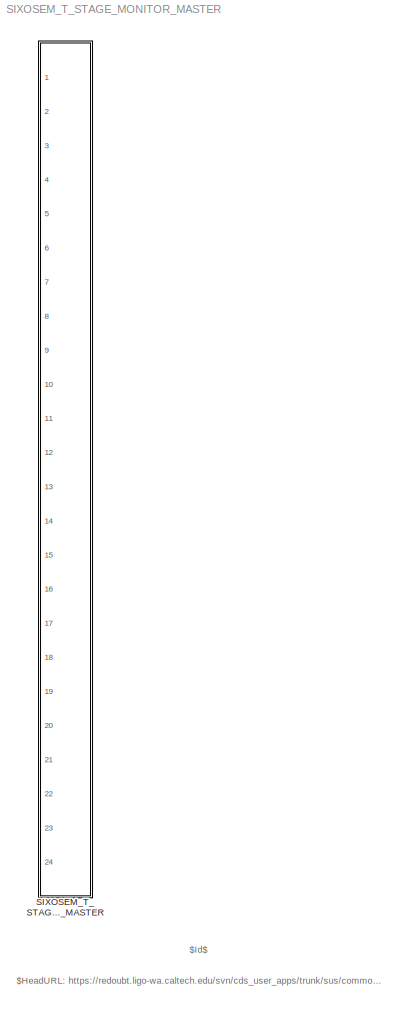
MODEL SIXOSEM_T_STAGE_MONITOR_MASTER
KIND library
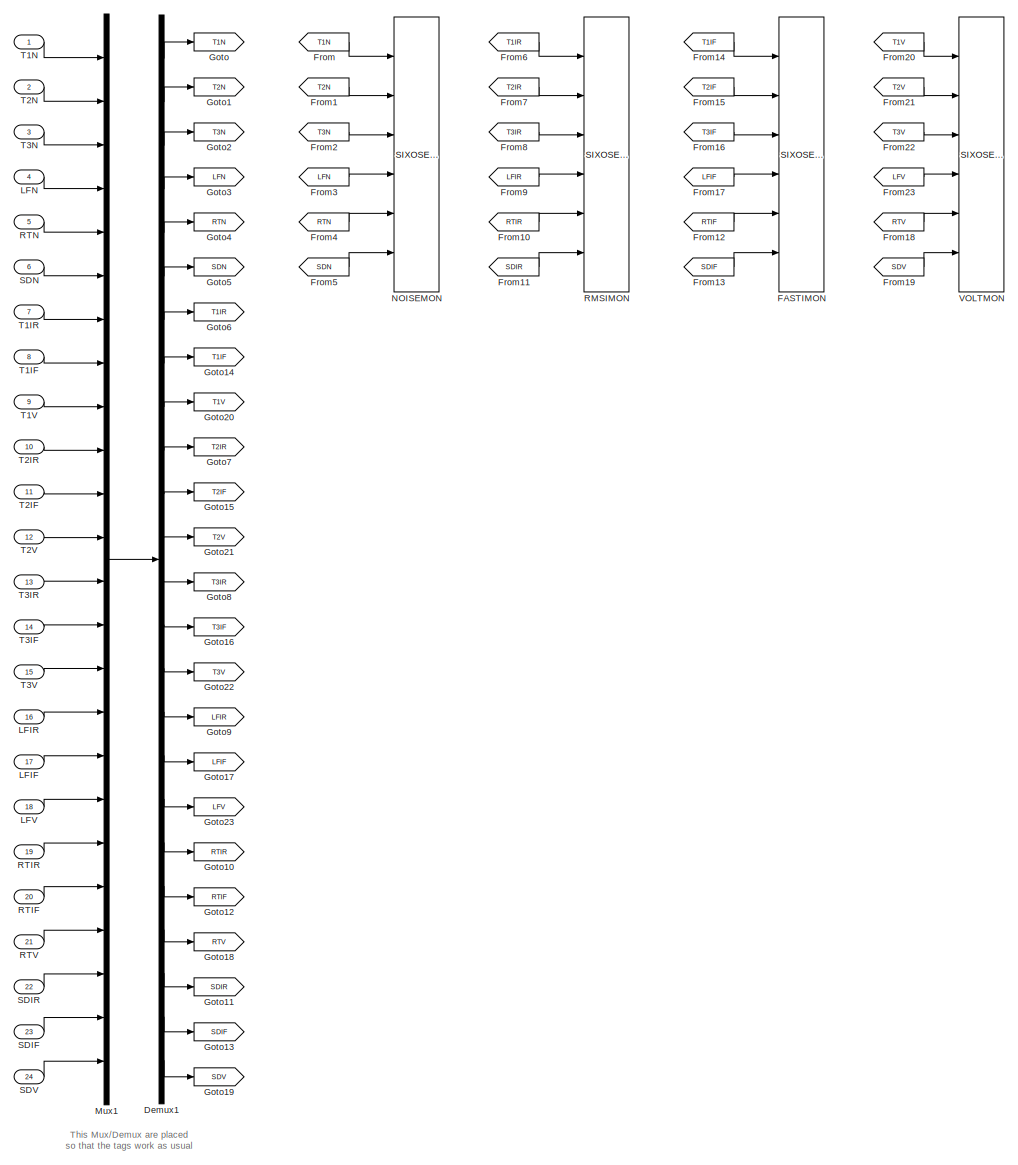
[diagram: SIXOSEM_T_STAGE_MONITOR_MASTER - part 1/1, most of the canvas]
BLOCK [SubSystem] SIXOSEM_T_STAGE_MONITOR_MASTER
  FunctionWithSeparateData = off
  MaskHideContents = off
  MinAlgLoopOccurrences = off
  Opaque = off
  Ports = [24]
  PropExecContextOutsideSubsystem = off
  RTWSystemCode = Auto
  RequestExecContextInheritance = off
  SID = 1
BLOCK [Demux] SIXOSEM_T_STAGE_MONITOR_MASTER/Demux1
  DisplayOption = bar
  Outputs = 24
  Ports = [1, 24]
  SID = 26
BLOCK [Reference] SIXOSEM_T_STAGE_MONITOR_MASTER/FASTIMON  REF=SIXOSEM_T_MONITOR_MASTER/SIXOSEM_T_MONITOR_MASTER
  FunctionWithSeparateData = off
  GeneratePreprocessorConditionals = off
  Ports = [6]
  RTWMemSecDataConstants = Inherit from model
  RTWMemSecDataInternal = Inherit from model
  RTWMemSecDataParameters = Inherit from model
  RTWMemSecFuncExecute = Inherit from model
  RTWMemSecFuncInitTerm = Inherit from model
  SID = 84
  ShowPortLabels = FromPortIcon
  SourceBlock = SIXOSEM_T_MONITOR_MASTER/SIXOSEM_T_MONITOR_MASTER
  SourceType = SubSystem
  SystemSampleTime = -1
BLOCK [From] SIXOSEM_T_STAGE_MONITOR_MASTER/From
  CloseFcn = tagdialog Close
  GotoTag = T1N
  SID = 28
BLOCK [From] SIXOSEM_T_STAGE_MONITOR_MASTER/From1
  CloseFcn = tagdialog Close
  GotoTag = T2N
  SID = 29
BLOCK [From] SIXOSEM_T_STAGE_MONITOR_MASTER/From10
  CloseFcn = tagdialog Close
  GotoTag = RTIR
  SID = 30
BLOCK [From] SIXOSEM_T_STAGE_MONITOR_MASTER/From11
  CloseFcn = tagdialog Close
  GotoTag = SDIR
  SID = 31
BLOCK [From] SIXOSEM_T_STAGE_MONITOR_MASTER/From12
  CloseFcn = tagdialog Close
  GotoTag = RTIF
  SID = 32
BLOCK [From] SIXOSEM_T_STAGE_MONITOR_MASTER/From13
  CloseFcn = tagdialog Close
  GotoTag = SDIF
  SID = 33
BLOCK [From] SIXOSEM_T_STAGE_MONITOR_MASTER/From14
  CloseFcn = tagdialog Close
  GotoTag = T1IF
  SID = 34
BLOCK [From] SIXOSEM_T_STAGE_MONITOR_MASTER/From15
  CloseFcn = tagdialog Close
  GotoTag = T2IF
  SID = 35
BLOCK [From] SIXOSEM_T_STAGE_MONITOR_MASTER/From16
  CloseFcn = tagdialog Close
  GotoTag = T3IF
  SID = 36
BLOCK [From] SIXOSEM_T_STAGE_MONITOR_MASTER/From17
  CloseFcn = tagdialog Close
  GotoTag = LFIF
  SID = 37
BLOCK [From] SIXOSEM_T_STAGE_MONITOR_MASTER/From18
  CloseFcn = tagdialog Close
  GotoTag = RTV
  SID = 38
BLOCK [From] SIXOSEM_T_STAGE_MONITOR_MASTER/From19
  CloseFcn = tagdialog Close
  GotoTag = SDV
  SID = 39
BLOCK [From] SIXOSEM_T_STAGE_MONITOR_MASTER/From2
  CloseFcn = tagdialog Close
  GotoTag = T3N
  SID = 40
BLOCK [From] SIXOSEM_T_STAGE_MONITOR_MASTER/From20
  CloseFcn = tagdialog Close
  GotoTag = T1V
  SID = 41
BLOCK [From] SIXOSEM_T_STAGE_MONITOR_MASTER/From21
  CloseFcn = tagdialog Close
  GotoTag = T2V
  SID = 42
BLOCK [From] SIXOSEM_T_STAGE_MONITOR_MASTER/From22
  CloseFcn = tagdialog Close
  GotoTag = T3V
  SID = 43
BLOCK [From] SIXOSEM_T_STAGE_MONITOR_MASTER/From23
  CloseFcn = tagdialog Close
  GotoTag = LFV
  SID = 44
BLOCK [From] SIXOSEM_T_STAGE_MONITOR_MASTER/From3
  CloseFcn = tagdialog Close
  GotoTag = LFN
  SID = 45
BLOCK [From] SIXOSEM_T_STAGE_MONITOR_MASTER/From4
  CloseFcn = tagdialog Close
  GotoTag = RTN
  SID = 46
BLOCK [From] SIXOSEM_T_STAGE_MONITOR_MASTER/From5
  CloseFcn = tagdialog Close
  GotoTag = SDN
  SID = 47
BLOCK [From] SIXOSEM_T_STAGE_MONITOR_MASTER/From6
  CloseFcn = tagdialog Close
  GotoTag = T1IR
  SID = 48
BLOCK [From] SIXOSEM_T_STAGE_MONITOR_MASTER/From7
  CloseFcn = tagdialog Close
  GotoTag = T2IR
  SID = 49
BLOCK [From] SIXOSEM_T_STAGE_MONITOR_MASTER/From8
  CloseFcn = tagdialog Close
  GotoTag = T3IR
  SID = 50
BLOCK [From] SIXOSEM_T_STAGE_MONITOR_MASTER/From9
  CloseFcn = tagdialog Close
  GotoTag = LFIR
  SID = 51
BLOCK [Goto] SIXOSEM_T_STAGE_MONITOR_MASTER/Goto
  GotoTag = T1N
  SID = 52
BLOCK [Goto] SIXOSEM_T_STAGE_MONITOR_MASTER/Goto1
  GotoTag = T2N
  SID = 53
BLOCK [Goto] SIXOSEM_T_STAGE_MONITOR_MASTER/Goto10
  GotoTag = RTIR
  SID = 54
BLOCK [Goto] SIXOSEM_T_STAGE_MONITOR_MASTER/Goto11
  GotoTag = SDIR
  SID = 55
BLOCK [Goto] SIXOSEM_T_STAGE_MONITOR_MASTER/Goto12
  GotoTag = RTIF
  SID = 56
BLOCK [Goto] SIXOSEM_T_STAGE_MONITOR_MASTER/Goto13
  GotoTag = SDIF
  SID = 57
BLOCK [Goto] SIXOSEM_T_STAGE_MONITOR_MASTER/Goto14
  GotoTag = T1IF
  SID = 58
BLOCK [Goto] SIXOSEM_T_STAGE_MONITOR_MASTER/Goto15
  GotoTag = T2IF
  SID = 59
BLOCK [Goto] SIXOSEM_T_STAGE_MONITOR_MASTER/Goto16
  GotoTag = T3IF
  SID = 60
BLOCK [Goto] SIXOSEM_T_STAGE_MONITOR_MASTER/Goto17
  GotoTag = LFIF
  SID = 61
BLOCK [Goto] SIXOSEM_T_STAGE_MONITOR_MASTER/Goto18
  GotoTag = RTV
  SID = 62
BLOCK [Goto] SIXOSEM_T_STAGE_MONITOR_MASTER/Goto19
  GotoTag = SDV
  SID = 63
BLOCK [Goto] SIXOSEM_T_STAGE_MONITOR_MASTER/Goto2
  GotoTag = T3N
  SID = 64
BLOCK [Goto] SIXOSEM_T_STAGE_MONITOR_MASTER/Goto20
  GotoTag = T1V
  SID = 65
BLOCK [Goto] SIXOSEM_T_STAGE_MONITOR_MASTER/Goto21
  GotoTag = T2V
  SID = 66
BLOCK [Goto] SIXOSEM_T_STAGE_MONITOR_MASTER/Goto22
  GotoTag = T3V
  SID = 67
BLOCK [Goto] SIXOSEM_T_STAGE_MONITOR_MASTER/Goto23
  GotoTag = LFV
  SID = 68
BLOCK [Goto] SIXOSEM_T_STAGE_MONITOR_MASTER/Goto3
  GotoTag = LFN
  SID = 69
BLOCK [Goto] SIXOSEM_T_STAGE_MONITOR_MASTER/Goto4
  GotoTag = RTN
  SID = 70
BLOCK [Goto] SIXOSEM_T_STAGE_MONITOR_MASTER/Goto5
  GotoTag = SDN
  SID = 71
BLOCK [Goto] SIXOSEM_T_STAGE_MONITOR_MASTER/Goto6
  GotoTag = T1IR
  SID = 72
BLOCK [Goto] SIXOSEM_T_STAGE_MONITOR_MASTER/Goto7
  GotoTag = T2IR
  SID = 73
BLOCK [Goto] SIXOSEM_T_STAGE_MONITOR_MASTER/Goto8
  GotoTag = T3IR
  SID = 74
BLOCK [Goto] SIXOSEM_T_STAGE_MONITOR_MASTER/Goto9
  GotoTag = LFIR
  SID = 75
BLOCK [Inport] SIXOSEM_T_STAGE_MONITOR_MASTER/LFIF
  IconDisplay = Port number
  Port = 17
  SID = 18
BLOCK [Inport] SIXOSEM_T_STAGE_MONITOR_MASTER/LFIR
  IconDisplay = Port number
  Port = 16
  SID = 17
BLOCK [Inport] SIXOSEM_T_STAGE_MONITOR_MASTER/LFN
  IconDisplay = Port number
  Port = 4
  SID = 5
BLOCK [Inport] SIXOSEM_T_STAGE_MONITOR_MASTER/LFV
  IconDisplay = Port number
  Port = 18
  SID = 19
BLOCK [Mux] SIXOSEM_T_STAGE_MONITOR_MASTER/Mux1
  DisplayOption = bar
  Inputs = 24
  Ports = [24, 1]
  SID = 76
BLOCK [Reference] SIXOSEM_T_STAGE_MONITOR_MASTER/NOISEMON  REF=SIXOSEM_T_MONITOR_MASTER/SIXOSEM_T_MONITOR_MASTER
  FunctionWithSeparateData = off
  GeneratePreprocessorConditionals = off
  Ports = [6]
  RTWMemSecDataConstants = Inherit from model
  RTWMemSecDataInternal = Inherit from model
  RTWMemSecDataParameters = Inherit from model
  RTWMemSecFuncExecute = Inherit from model
  RTWMemSecFuncInitTerm = Inherit from model
  SID = 80
  ShowPortLabels = FromPortIcon
  SourceBlock = SIXOSEM_T_MONITOR_MASTER/SIXOSEM_T_MONITOR_MASTER
  SourceType = SubSystem
  SystemSampleTime = -1
BLOCK [Reference] SIXOSEM_T_STAGE_MONITOR_MASTER/RMSIMON  REF=SIXOSEM_T_MONITOR_MASTER/SIXOSEM_T_MONITOR_MASTER
  FunctionWithSeparateData = off
  GeneratePreprocessorConditionals = off
  Ports = [6]
  RTWMemSecDataConstants = Inherit from model
  RTWMemSecDataInternal = Inherit from model
  RTWMemSecDataParameters = Inherit from model
  RTWMemSecFuncExecute = Inherit from model
  RTWMemSecFuncInitTerm = Inherit from model
  SID = 83
  ShowPortLabels = FromPortIcon
  SourceBlock = SIXOSEM_T_MONITOR_MASTER/SIXOSEM_T_MONITOR_MASTER
  SourceType = SubSystem
  SystemSampleTime = -1
BLOCK [Inport] SIXOSEM_T_STAGE_MONITOR_MASTER/RTIF
  IconDisplay = Port number
  Port = 20
  SID = 21
BLOCK [Inport] SIXOSEM_T_STAGE_MONITOR_MASTER/RTIR
  IconDisplay = Port number
  Port = 19
  SID = 20
BLOCK [Inport] SIXOSEM_T_STAGE_MONITOR_MASTER/RTN
  IconDisplay = Port number
  Port = 5
  SID = 6
BLOCK [Inport] SIXOSEM_T_STAGE_MONITOR_MASTER/RTV
  IconDisplay = Port number
  Port = 21
  SID = 22
BLOCK [Inport] SIXOSEM_T_STAGE_MONITOR_MASTER/SDIF
  IconDisplay = Port number
  Port = 23
  SID = 24
BLOCK [Inport] SIXOSEM_T_STAGE_MONITOR_MASTER/SDIR
  IconDisplay = Port number
  Port = 22
  SID = 23
BLOCK [Inport] SIXOSEM_T_STAGE_MONITOR_MASTER/SDN
  IconDisplay = Port number
  Port = 6
  SID = 7
BLOCK [Inport] SIXOSEM_T_STAGE_MONITOR_MASTER/SDV
  IconDisplay = Port number
  Port = 24
  SID = 25
BLOCK [Inport] SIXOSEM_T_STAGE_MONITOR_MASTER/T1IF
  IconDisplay = Port number
  Port = 8
  SID = 9
BLOCK [Inport] SIXOSEM_T_STAGE_MONITOR_MASTER/T1IR
  IconDisplay = Port number
  Port = 7
  SID = 8
BLOCK [Inport] SIXOSEM_T_STAGE_MONITOR_MASTER/T1N
  IconDisplay = Port number
  SID = 2
BLOCK [Inport] SIXOSEM_T_STAGE_MONITOR_MASTER/T1V
  IconDisplay = Port number
  Port = 9
  SID = 10
BLOCK [Inport] SIXOSEM_T_STAGE_MONITOR_MASTER/T2IF
  IconDisplay = Port number
  Port = 11
  SID = 12
BLOCK [Inport] SIXOSEM_T_STAGE_MONITOR_MASTER/T2IR
  IconDisplay = Port number
  Port = 10
  SID = 11
BLOCK [Inport] SIXOSEM_T_STAGE_MONITOR_MASTER/T2N
  IconDisplay = Port number
  Port = 2
  SID = 3
BLOCK [Inport] SIXOSEM_T_STAGE_MONITOR_MASTER/T2V
  IconDisplay = Port number
  Port = 12
  SID = 13
BLOCK [Inport] SIXOSEM_T_STAGE_MONITOR_MASTER/T3IF
  IconDisplay = Port number
  Port = 14
  SID = 15
BLOCK [Inport] SIXOSEM_T_STAGE_MONITOR_MASTER/T3IR
  IconDisplay = Port number
  Port = 13
  SID = 14
BLOCK [Inport] SIXOSEM_T_STAGE_MONITOR_MASTER/T3N
  IconDisplay = Port number
  Port = 3
  SID = 4
BLOCK [Inport] SIXOSEM_T_STAGE_MONITOR_MASTER/T3V
  IconDisplay = Port number
  Port = 15
  SID = 16
BLOCK [Reference] SIXOSEM_T_STAGE_MONITOR_MASTER/VOLTMON  REF=SIXOSEM_T_MONITOR_MASTER/SIXOSEM_T_MONITOR_MASTER
  FunctionWithSeparateData = off
  GeneratePreprocessorConditionals = off
  Ports = [6]
  RTWMemSecDataConstants = Inherit from model
  RTWMemSecDataInternal = Inherit from model
  RTWMemSecDataParameters = Inherit from model
  RTWMemSecFuncExecute = Inherit from model
  RTWMemSecFuncInitTerm = Inherit from model
  SID = 85
  ShowPortLabels = FromPortIcon
  SourceBlock = SIXOSEM_T_MONITOR_MASTER/SIXOSEM_T_MONITOR_MASTER
  SourceType = SubSystem
  SystemSampleTime = -1
ANNOTATION (root): $HeadURL: https://redoubt.ligo-wa.caltech.edu/svn/cds_user_apps/trunk/sus/common/models/SIXOSEM_T_STAGE_MONITOR_MASTER.mdl $
ANNOTATION (root): $Id$
ANNOTATION SIXOSEM_T_STAGE_MONITOR_MASTER: This Mux/Demux are placed\nso that the tags work as usual
LINE SIXOSEM_T_STAGE_MONITOR_MASTER/Demux1:1 -> SIXOSEM_T_STAGE_MONITOR_MASTER/Goto:1
LINE SIXOSEM_T_STAGE_MONITOR_MASTER/Demux1:10 -> SIXOSEM_T_STAGE_MONITOR_MASTER/Goto7:1
LINE SIXOSEM_T_STAGE_MONITOR_MASTER/Demux1:11 -> SIXOSEM_T_STAGE_MONITOR_MASTER/Goto15:1
LINE SIXOSEM_T_STAGE_MONITOR_MASTER/Demux1:12 -> SIXOSEM_T_STAGE_MONITOR_MASTER/Goto21:1
LINE SIXOSEM_T_STAGE_MONITOR_MASTER/Demux1:13 -> SIXOSEM_T_STAGE_MONITOR_MASTER/Goto8:1
LINE SIXOSEM_T_STAGE_MONITOR_MASTER/Demux1:14 -> SIXOSEM_T_STAGE_MONITOR_MASTER/Goto16:1
LINE SIXOSEM_T_STAGE_MONITOR_MASTER/Demux1:15 -> SIXOSEM_T_STAGE_MONITOR_MASTER/Goto22:1
LINE SIXOSEM_T_STAGE_MONITOR_MASTER/Demux1:16 -> SIXOSEM_T_STAGE_MONITOR_MASTER/Goto9:1
LINE SIXOSEM_T_STAGE_MONITOR_MASTER/Demux1:17 -> SIXOSEM_T_STAGE_MONITOR_MASTER/Goto17:1
LINE SIXOSEM_T_STAGE_MONITOR_MASTER/Demux1:18 -> SIXOSEM_T_STAGE_MONITOR_MASTER/Goto23:1
LINE SIXOSEM_T_STAGE_MONITOR_MASTER/Demux1:19 -> SIXOSEM_T_STAGE_MONITOR_MASTER/Goto10:1
LINE SIXOSEM_T_STAGE_MONITOR_MASTER/Demux1:2 -> SIXOSEM_T_STAGE_MONITOR_MASTER/Goto1:1
LINE SIXOSEM_T_STAGE_MONITOR_MASTER/Demux1:20 -> SIXOSEM_T_STAGE_MONITOR_MASTER/Goto12:1
LINE SIXOSEM_T_STAGE_MONITOR_MASTER/Demux1:21 -> SIXOSEM_T_STAGE_MONITOR_MASTER/Goto18:1
LINE SIXOSEM_T_STAGE_MONITOR_MASTER/Demux1:22 -> SIXOSEM_T_STAGE_MONITOR_MASTER/Goto11:1
LINE SIXOSEM_T_STAGE_MONITOR_MASTER/Demux1:23 -> SIXOSEM_T_STAGE_MONITOR_MASTER/Goto13:1
LINE SIXOSEM_T_STAGE_MONITOR_MASTER/Demux1:24 -> SIXOSEM_T_STAGE_MONITOR_MASTER/Goto19:1
LINE SIXOSEM_T_STAGE_MONITOR_MASTER/Demux1:3 -> SIXOSEM_T_STAGE_MONITOR_MASTER/Goto2:1
LINE SIXOSEM_T_STAGE_MONITOR_MASTER/Demux1:4 -> SIXOSEM_T_STAGE_MONITOR_MASTER/Goto3:1
LINE SIXOSEM_T_STAGE_MONITOR_MASTER/Demux1:5 -> SIXOSEM_T_STAGE_MONITOR_MASTER/Goto4:1
LINE SIXOSEM_T_STAGE_MONITOR_MASTER/Demux1:6 -> SIXOSEM_T_STAGE_MONITOR_MASTER/Goto5:1
LINE SIXOSEM_T_STAGE_MONITOR_MASTER/Demux1:7 -> SIXOSEM_T_STAGE_MONITOR_MASTER/Goto6:1
LINE SIXOSEM_T_STAGE_MONITOR_MASTER/Demux1:8 -> SIXOSEM_T_STAGE_MONITOR_MASTER/Goto14:1
LINE SIXOSEM_T_STAGE_MONITOR_MASTER/Demux1:9 -> SIXOSEM_T_STAGE_MONITOR_MASTER/Goto20:1
LINE SIXOSEM_T_STAGE_MONITOR_MASTER/From10:1 -> SIXOSEM_T_STAGE_MONITOR_MASTER/RMSIMON:5
LINE SIXOSEM_T_STAGE_MONITOR_MASTER/From11:1 -> SIXOSEM_T_STAGE_MONITOR_MASTER/RMSIMON:6
LINE SIXOSEM_T_STAGE_MONITOR_MASTER/From12:1 -> SIXOSEM_T_STAGE_MONITOR_MASTER/FASTIMON:5
LINE SIXOSEM_T_STAGE_MONITOR_MASTER/From13:1 -> SIXOSEM_T_STAGE_MONITOR_MASTER/FASTIMON:6
LINE SIXOSEM_T_STAGE_MONITOR_MASTER/From14:1 -> SIXOSEM_T_STAGE_MONITOR_MASTER/FASTIMON:1
LINE SIXOSEM_T_STAGE_MONITOR_MASTER/From15:1 -> SIXOSEM_T_STAGE_MONITOR_MASTER/FASTIMON:2
LINE SIXOSEM_T_STAGE_MONITOR_MASTER/From16:1 -> SIXOSEM_T_STAGE_MONITOR_MASTER/FASTIMON:3
LINE SIXOSEM_T_STAGE_MONITOR_MASTER/From17:1 -> SIXOSEM_T_STAGE_MONITOR_MASTER/FASTIMON:4
LINE SIXOSEM_T_STAGE_MONITOR_MASTER/From18:1 -> SIXOSEM_T_STAGE_MONITOR_MASTER/VOLTMON:5
LINE SIXOSEM_T_STAGE_MONITOR_MASTER/From19:1 -> SIXOSEM_T_STAGE_MONITOR_MASTER/VOLTMON:6
LINE SIXOSEM_T_STAGE_MONITOR_MASTER/From1:1 -> SIXOSEM_T_STAGE_MONITOR_MASTER/NOISEMON:2
LINE SIXOSEM_T_STAGE_MONITOR_MASTER/From20:1 -> SIXOSEM_T_STAGE_MONITOR_MASTER/VOLTMON:1
LINE SIXOSEM_T_STAGE_MONITOR_MASTER/From21:1 -> SIXOSEM_T_STAGE_MONITOR_MASTER/VOLTMON:2
LINE SIXOSEM_T_STAGE_MONITOR_MASTER/From22:1 -> SIXOSEM_T_STAGE_MONITOR_MASTER/VOLTMON:3
LINE SIXOSEM_T_STAGE_MONITOR_MASTER/From23:1 -> SIXOSEM_T_STAGE_MONITOR_MASTER/VOLTMON:4
LINE SIXOSEM_T_STAGE_MONITOR_MASTER/From2:1 -> SIXOSEM_T_STAGE_MONITOR_MASTER/NOISEMON:3
LINE SIXOSEM_T_STAGE_MONITOR_MASTER/From3:1 -> SIXOSEM_T_STAGE_MONITOR_MASTER/NOISEMON:4
LINE SIXOSEM_T_STAGE_MONITOR_MASTER/From4:1 -> SIXOSEM_T_STAGE_MONITOR_MASTER/NOISEMON:5
LINE SIXOSEM_T_STAGE_MONITOR_MASTER/From5:1 -> SIXOSEM_T_STAGE_MONITOR_MASTER/NOISEMON:6
LINE SIXOSEM_T_STAGE_MONITOR_MASTER/From6:1 -> SIXOSEM_T_STAGE_MONITOR_MASTER/RMSIMON:1
LINE SIXOSEM_T_STAGE_MONITOR_MASTER/From7:1 -> SIXOSEM_T_STAGE_MONITOR_MASTER/RMSIMON:2
LINE SIXOSEM_T_STAGE_MONITOR_MASTER/From8:1 -> SIXOSEM_T_STAGE_MONITOR_MASTER/RMSIMON:3
LINE SIXOSEM_T_STAGE_MONITOR_MASTER/From9:1 -> SIXOSEM_T_STAGE_MONITOR_MASTER/RMSIMON:4
LINE SIXOSEM_T_STAGE_MONITOR_MASTER/From:1 -> SIXOSEM_T_STAGE_MONITOR_MASTER/NOISEMON:1
LINE SIXOSEM_T_STAGE_MONITOR_MASTER/LFIF:1 -> SIXOSEM_T_STAGE_MONITOR_MASTER/Mux1:17
LINE SIXOSEM_T_STAGE_MONITOR_MASTER/LFIR:1 -> SIXOSEM_T_STAGE_MONITOR_MASTER/Mux1:16
LINE SIXOSEM_T_STAGE_MONITOR_MASTER/LFN:1 -> SIXOSEM_T_STAGE_MONITOR_MASTER/Mux1:4
LINE SIXOSEM_T_STAGE_MONITOR_MASTER/LFV:1 -> SIXOSEM_T_STAGE_MONITOR_MASTER/Mux1:18
LINE SIXOSEM_T_STAGE_MONITOR_MASTER/Mux1:1 -> SIXOSEM_T_STAGE_MONITOR_MASTER/Demux1:1
LINE SIXOSEM_T_STAGE_MONITOR_MASTER/RTIF:1 -> SIXOSEM_T_STAGE_MONITOR_MASTER/Mux1:20
LINE SIXOSEM_T_STAGE_MONITOR_MASTER/RTIR:1 -> SIXOSEM_T_STAGE_MONITOR_MASTER/Mux1:19
LINE SIXOSEM_T_STAGE_MONITOR_MASTER/RTN:1 -> SIXOSEM_T_STAGE_MONITOR_MASTER/Mux1:5
LINE SIXOSEM_T_STAGE_MONITOR_MASTER/RTV:1 -> SIXOSEM_T_STAGE_MONITOR_MASTER/Mux1:21
LINE SIXOSEM_T_STAGE_MONITOR_MASTER/SDIF:1 -> SIXOSEM_T_STAGE_MONITOR_MASTER/Mux1:23
LINE SIXOSEM_T_STAGE_MONITOR_MASTER/SDIR:1 -> SIXOSEM_T_STAGE_MONITOR_MASTER/Mux1:22
LINE SIXOSEM_T_STAGE_MONITOR_MASTER/SDN:1 -> SIXOSEM_T_STAGE_MONITOR_MASTER/Mux1:6
LINE SIXOSEM_T_STAGE_MONITOR_MASTER/SDV:1 -> SIXOSEM_T_STAGE_MONITOR_MASTER/Mux1:24
LINE SIXOSEM_T_STAGE_MONITOR_MASTER/T1IF:1 -> SIXOSEM_T_STAGE_MONITOR_MASTER/Mux1:8
LINE SIXOSEM_T_STAGE_MONITOR_MASTER/T1IR:1 -> SIXOSEM_T_STAGE_MONITOR_MASTER/Mux1:7
LINE SIXOSEM_T_STAGE_MONITOR_MASTER/T1N:1 -> SIXOSEM_T_STAGE_MONITOR_MASTER/Mux1:1
LINE SIXOSEM_T_STAGE_MONITOR_MASTER/T1V:1 -> SIXOSEM_T_STAGE_MONITOR_MASTER/Mux1:9
LINE SIXOSEM_T_STAGE_MONITOR_MASTER/T2IF:1 -> SIXOSEM_T_STAGE_MONITOR_MASTER/Mux1:11
LINE SIXOSEM_T_STAGE_MONITOR_MASTER/T2IR:1 -> SIXOSEM_T_STAGE_MONITOR_MASTER/Mux1:10
LINE SIXOSEM_T_STAGE_MONITOR_MASTER/T2N:1 -> SIXOSEM_T_STAGE_MONITOR_MASTER/Mux1:2
LINE SIXOSEM_T_STAGE_MONITOR_MASTER/T2V:1 -> SIXOSEM_T_STAGE_MONITOR_MASTER/Mux1:12
LINE SIXOSEM_T_STAGE_MONITOR_MASTER/T3IF:1 -> SIXOSEM_T_STAGE_MONITOR_MASTER/Mux1:14
LINE SIXOSEM_T_STAGE_MONITOR_MASTER/T3IR:1 -> SIXOSEM_T_STAGE_MONITOR_MASTER/Mux1:13
LINE SIXOSEM_T_STAGE_MONITOR_MASTER/T3N:1 -> SIXOSEM_T_STAGE_MONITOR_MASTER/Mux1:3
LINE SIXOSEM_T_STAGE_MONITOR_MASTER/T3V:1 -> SIXOSEM_T_STAGE_MONITOR_MASTER/Mux1:15
